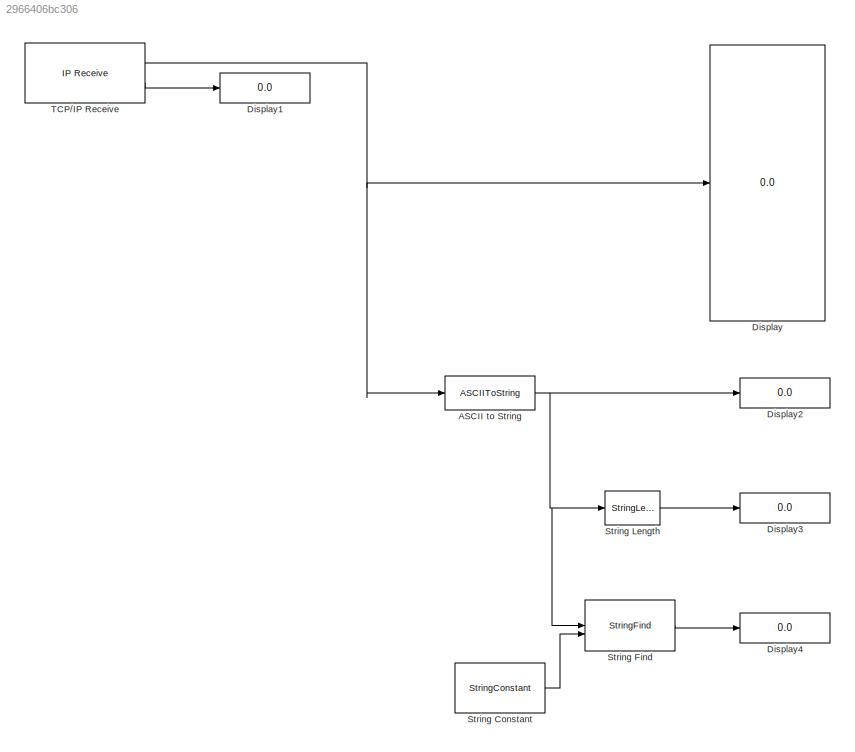
MODEL slx_2966406bc306
KIND model
CONFIG AbsTol = auto
CONFIG EnableMultiTasking = on
CONFIG FixedStep = auto
CONFIG MaxStep = auto
CONFIG MinStep = auto
CONFIG RelTol = 1e-3
CONFIG SampleTimeConstraint = Unconstrained
CONFIG Solver = FixedStepAuto
CONFIG SolverName = FixedStepAuto
CONFIG StartTime = 0.0
CONFIG StopTime = Inf
BLOCK [ASCIIToString] ASCII to String
BLOCK [Display] Display
  Decimation = 1
  Ports = [1]
BLOCK [Display] Display1
  Decimation = 1
  Ports = [1]
BLOCK [Display] Display2
  Decimation = 1
  Ports = [1]
BLOCK [Display] Display3
  Decimation = 1
  Ports = [1]
BLOCK [Display] Display4
  Decimation = 1
  Ports = [1]
BLOCK [StringConstant] String Constant
  String = "DONE"
BLOCK [StringFind] String Find
BLOCK [StringLength] String Length
BLOCK [Reference] TCP//IP Receive  REF=raspberrypilib/TCP//IP Receive
  Ports = [0, 2]
  SourceBlock = raspberrypilib/TCP//IP Receive
  SourceProductBaseCode = RASPPI
  SourceProductName = Simulink Support Package for Raspberry Pi Hardware
  SourceType = raspi.internal.TCPReceive
NET ASCII to String:1 -> Display2:1, String Find:1, String Length:1
LINE String Constant:1 -> String Find:2
LINE String Find:1 -> Display4:1
LINE String Length:1 -> Display3:1
NET TCP//IP Receive:1 -> ASCII to String:1, Display:1
LINE TCP//IP Receive:2 -> Display1:1
note: NET lines group one-source signal fan-out (src -> all destinations, sorted); 1:1 wires keep LINE
